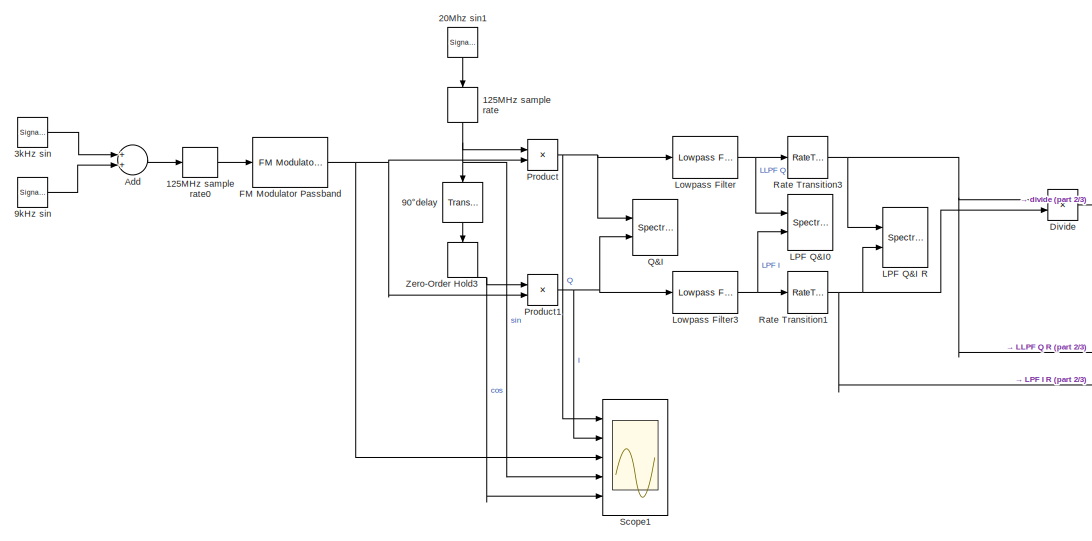
[diagram: root canvas - part 1/3, top left region]
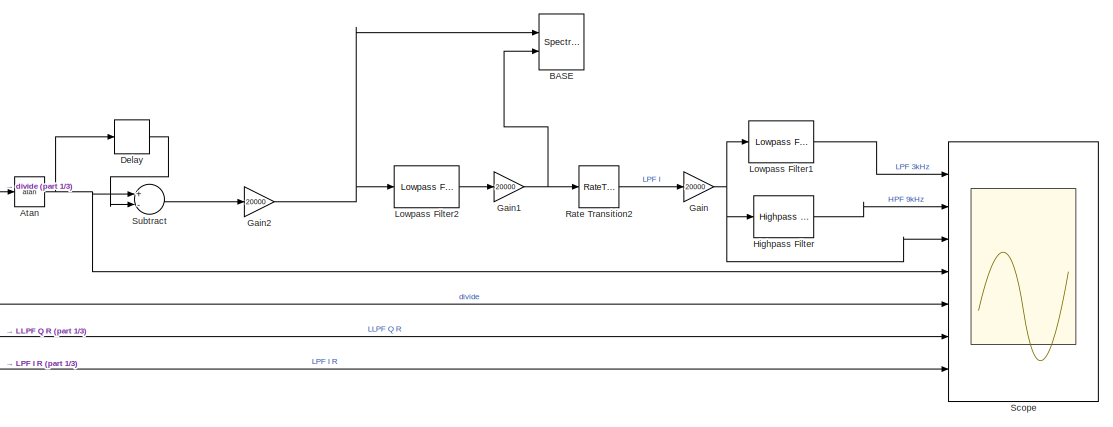
[diagram: root canvas - part 2/3, top right region]
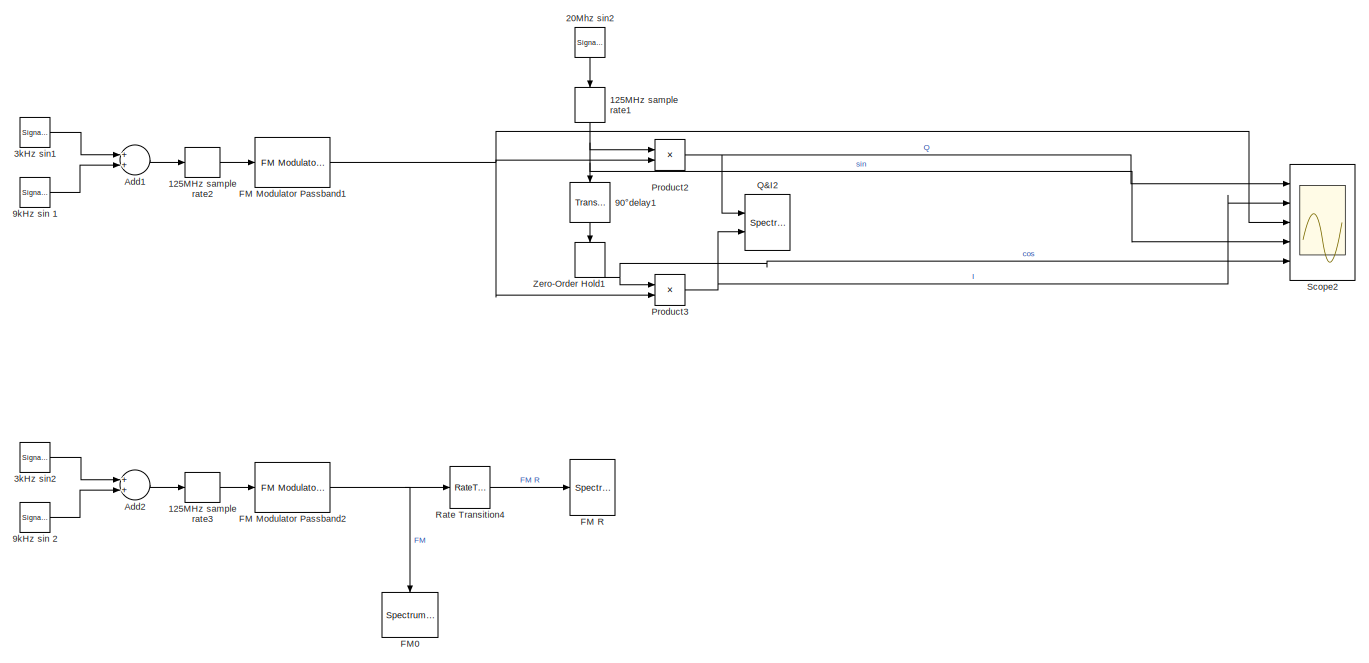
[diagram: root canvas - part 3/3, bottom left region]
MODEL slx_e75ce9194355
KIND model
CONFIG AbsTol = auto
CONFIG EnableMultiTasking = off
CONFIG FixedStep = 8e-9
CONFIG MaxStep = auto
CONFIG MinStep = auto
CONFIG RelTol = 1e-3
CONFIG SampleTimeConstraint = Unconstrained
CONFIG Solver = VariableStepAuto
CONFIG SolverName = VariableStepAuto
CONFIG StartTime = 0.0
CONFIG StopTime = 0.05
BLOCK [ZeroOrderHold] 125MHz sample rate
  SampleTime = 8e-9
BLOCK [ZeroOrderHold] 125MHz sample rate0
  SampleTime = 8e-9
BLOCK [ZeroOrderHold] 125MHz sample rate1
  SampleTime = 8E-9
BLOCK [ZeroOrderHold] 125MHz sample rate2
  SampleTime = 8e-9
BLOCK [ZeroOrderHold] 125MHz sample rate3
  SampleTime = 8e-9
BLOCK [SignalGenerator] 20Mhz sin1
  Frequency = 20e6
  Ports = [0, 1]
BLOCK [SignalGenerator] 20Mhz sin2
  Frequency = 20e6
  Ports = [0, 1]
BLOCK [SignalGenerator] 3kHz sin
  Frequency = 3000
  Ports = [0, 1]
BLOCK [SignalGenerator] 3kHz sin1
  Frequency = 3000
  Ports = [0, 1]
BLOCK [SignalGenerator] 3kHz sin2
  Frequency = 3000
  Ports = [0, 1]
BLOCK [TransportDelay] 90°delay
  DelayTime = 12.5e-9
  Ports = [1, 1]
BLOCK [TransportDelay] 90°delay1
  DelayTime = 12.5e-9
  Ports = [1, 1]
BLOCK [SignalGenerator] 9kHz sin 
  Frequency = 9000
  Ports = [0, 1]
BLOCK [SignalGenerator] 9kHz sin 1
  Frequency = 9000
  Ports = [0, 1]
BLOCK [SignalGenerator] 9kHz sin 2
  Frequency = 9000
  Ports = [0, 1]
BLOCK [Sum] Add
  InputSameDT = off
  OutDataTypeStr = Inherit: Inherit via internal rule
  Ports = [2, 1]
  SaturateOnIntegerOverflow = off
BLOCK [Sum] Add1
  InputSameDT = off
  OutDataTypeStr = Inherit: Inherit via internal rule
  Ports = [2, 1]
  SaturateOnIntegerOverflow = off
BLOCK [Sum] Add2
  InputSameDT = off
  OutDataTypeStr = Inherit: Inherit via internal rule
  Ports = [2, 1]
  SaturateOnIntegerOverflow = off
BLOCK [Trigonometry] Atan
  Operator = atan
  Ports = [1, 1]
BLOCK [SpectrumAnalyzer] BASE
  NumInputPorts = 2
  Ports = [2]
  ScopeSpecificationString = spbscopes.SpectrumAnalyzerBlockCfg('CurrentConfiguration', extmgr.ConfigurationSet(extmgr.Configuration('Core','General UI',true),extmgr.Configuration('Core','Source UI',true),extmgr.Configuration('Sources','WiredSimulink',true),extmgr.Configuration('Sources','SimulinkEvent',false),extmgr.Configuration('Sources','Simulink',false),extmgr.Configuration('Sources','SPTool',false),extmgr.Configuration(...<+3936ch>
BLOCK [Delay] Delay
  DelayLength = 40
  InitialCondition = 0
  InputPortMap = u0
  Ports = [1, 1]
BLOCK [Product] Divide
  InputSameDT = off
  Inputs = */
  OutDataTypeStr = Inherit: Inherit via internal rule
  Ports = [2, 1]
  RndMeth = Floor
  SaturateOnIntegerOverflow = off
BLOCK [Reference] FM Modulator Passband  REF=commanapbnd3/FM
Modulator
Passband
  Ports = [1, 1]
  SourceBlock = commanapbnd3/FM\nModulator\nPassband
  SourceProductBaseCode = CM
  SourceProductName = Communications Toolbox
  SourceType = FM Modulator Passband
BLOCK [Reference] FM Modulator Passband1  REF=commanapbnd3/FM
Modulator
Passband
  Ports = [1, 1]
  SourceBlock = commanapbnd3/FM\nModulator\nPassband
  SourceProductBaseCode = CM
  SourceProductName = Communications Toolbox
  SourceType = FM Modulator Passband
BLOCK [Reference] FM Modulator Passband2  REF=commanapbnd3/FM
Modulator
Passband
  Ports = [1, 1]
  SourceBlock = commanapbnd3/FM\nModulator\nPassband
  SourceProductBaseCode = CM
  SourceProductName = Communications Toolbox
  SourceType = FM Modulator Passband
BLOCK [SpectrumAnalyzer] FM R
  Ports = [1]
  ScopeSpecificationString = spbscopes.SpectrumAnalyzerBlockCfg('CurrentConfiguration', extmgr.ConfigurationSet(extmgr.Configuration('Core','General UI',true),extmgr.Configuration('Core','Source UI',true),extmgr.Configuration('Sources','WiredSimulink',true),extmgr.Configuration('Sources','SimulinkEvent',false),extmgr.Configuration('Sources','Simulink',false),extmgr.Configuration('Sources','SPTool',false),extmgr.Configuration(...<+3840ch>
BLOCK [SpectrumAnalyzer] FM0
  Ports = [1]
  ScopeSpecificationString = spbscopes.SpectrumAnalyzerBlockCfg('CurrentConfiguration', extmgr.ConfigurationSet(extmgr.Configuration('Core','General UI',true),extmgr.Configuration('Core','Source UI',true),extmgr.Configuration('Sources','WiredSimulink',true),extmgr.Configuration('Sources','SimulinkEvent',false),extmgr.Configuration('Sources','Simulink',false),extmgr.Configuration('Sources','SPTool',false),extmgr.Configuration(...<+3766ch>
BLOCK [Gain] Gain
  Gain = 20000
  OutDataTypeStr = Inherit: Inherit via internal rule
  ParamDataTypeStr = Inherit: Inherit via internal rule
  SaturateOnIntegerOverflow = off
BLOCK [Gain] Gain1
  Gain = 20000
  OutDataTypeStr = Inherit: Inherit via internal rule
  ParamDataTypeStr = Inherit: Inherit via internal rule
  SaturateOnIntegerOverflow = off
BLOCK [Gain] Gain2
  Gain = 20000
  OutDataTypeStr = Inherit: Inherit via internal rule
  ParamDataTypeStr = Inherit: Inherit via internal rule
  SaturateOnIntegerOverflow = off
BLOCK [Reference] Highpass Filter  REF=dspfdesign/Highpass Filter
  Ports = [1, 1]
  SourceBlock = dspfdesign/Highpass Filter
  SourceProductBaseCode = DS
  SourceProductName = DSP System Toolbox
  SourceType = dsp.HighpassFilter
BLOCK [SpectrumAnalyzer] LPF Q&I R
  NumInputPorts = 2
  Ports = [2]
  ScopeSpecificationString = spbscopes.SpectrumAnalyzerBlockCfg('CurrentConfiguration', extmgr.ConfigurationSet(extmgr.Configuration('Core','General UI',true),extmgr.Configuration('Core','Source UI',true),extmgr.Configuration('Sources','WiredSimulink',true),extmgr.Configuration('Sources','SimulinkEvent',false),extmgr.Configuration('Sources','Simulink',false),extmgr.Configuration('Sources','SPTool',false),extmgr.Configuration(...<+3973ch>
BLOCK [SpectrumAnalyzer] LPF Q&I0
  NumInputPorts = 2
  Ports = [2]
  ScopeSpecificationString = spbscopes.SpectrumAnalyzerBlockCfg('CurrentConfiguration', extmgr.ConfigurationSet(extmgr.Configuration('Core','General UI',true),extmgr.Configuration('Core','Source UI',true),extmgr.Configuration('Sources','WiredSimulink',true),extmgr.Configuration('Sources','SimulinkEvent',false),extmgr.Configuration('Sources','Simulink',false),extmgr.Configuration('Sources','SPTool',false),extmgr.Configuration(...<+3888ch>
BLOCK [Reference] Lowpass Filter  REF=dspfdesign/Lowpass Filter
  Ports = [1, 1]
  SourceBlock = dspfdesign/Lowpass Filter
  SourceProductBaseCode = DS
  SourceProductName = DSP System Toolbox
  SourceType = dsp.LowpassFilter
BLOCK [Reference] Lowpass Filter1  REF=dspfdesign/Lowpass Filter
  Ports = [1, 1]
  SourceBlock = dspfdesign/Lowpass Filter
  SourceProductBaseCode = DS
  SourceProductName = DSP System Toolbox
  SourceType = dsp.LowpassFilter
BLOCK [Reference] Lowpass Filter2  REF=dspfdesign/Lowpass Filter
  Ports = [1, 1]
  SourceBlock = dspfdesign/Lowpass Filter
  SourceProductBaseCode = DS
  SourceProductName = DSP System Toolbox
  SourceType = dsp.LowpassFilter
BLOCK [Reference] Lowpass Filter3  REF=dspfdesign/Lowpass Filter
  Ports = [1, 1]
  SourceBlock = dspfdesign/Lowpass Filter
  SourceProductBaseCode = DS
  SourceProductName = DSP System Toolbox
  SourceType = dsp.LowpassFilter
BLOCK [Product] Product
  InputSameDT = off
  OutDataTypeStr = Inherit: Inherit via internal rule
  Ports = [2, 1]
  RndMeth = Floor
  SaturateOnIntegerOverflow = off
BLOCK [Product] Product1
  InputSameDT = off
  OutDataTypeStr = Inherit: Inherit via internal rule
  Ports = [2, 1]
  RndMeth = Floor
  SaturateOnIntegerOverflow = off
BLOCK [Product] Product2
  InputSameDT = off
  OutDataTypeStr = Inherit: Inherit via internal rule
  Ports = [2, 1]
  RndMeth = Floor
  SaturateOnIntegerOverflow = off
BLOCK [Product] Product3
  InputSameDT = off
  OutDataTypeStr = Inherit: Inherit via internal rule
  Ports = [2, 1]
  RndMeth = Floor
  SaturateOnIntegerOverflow = off
BLOCK [SpectrumAnalyzer] Q&I
  NumInputPorts = 2
  Ports = [2]
  ScopeSpecificationString = spbscopes.SpectrumAnalyzerBlockCfg('CurrentConfiguration', extmgr.ConfigurationSet(extmgr.Configuration('Core','General UI',true),extmgr.Configuration('Core','Source UI',true),extmgr.Configuration('Sources','WiredSimulink',true),extmgr.Configuration('Sources','SimulinkEvent',false),extmgr.Configuration('Sources','Simulink',false),extmgr.Configuration('Sources','SPTool',false),extmgr.Configuration(...<+3863ch>
BLOCK [SpectrumAnalyzer] Q&I2
  NumInputPorts = 2
  Ports = [2]
  ScopeSpecificationString = spbscopes.SpectrumAnalyzerBlockCfg('CurrentConfiguration', extmgr.ConfigurationSet(extmgr.Configuration('Core','General UI',true),extmgr.Configuration('Core','Source UI',true),extmgr.Configuration('Sources','WiredSimulink',true),extmgr.Configuration('Sources','SimulinkEvent',false),extmgr.Configuration('Sources','Simulink',false),extmgr.Configuration('Sources','SPTool',false),extmgr.Configuration(...<+3860ch>
BLOCK [RateTransition] Rate Transition1
  OutPortSampleTimeMultiple = 25
  OutPortSampleTimeOpt = Multiple of input port sample time
BLOCK [RateTransition] Rate Transition2
  OutPortSampleTimeMultiple = 50
  OutPortSampleTimeOpt = Multiple of input port sample time
BLOCK [RateTransition] Rate Transition3
  OutPortSampleTimeMultiple = 25
  OutPortSampleTimeOpt = Multiple of input port sample time
BLOCK [RateTransition] Rate Transition4
  OutPortSampleTimeMultiple = 2
  OutPortSampleTimeOpt = Multiple of input port sample time
BLOCK [Scope] Scope
  Floating = off
  NumInputPorts = 7
  Ports = [7]
  ScopeSpecificationString = Simulink.scopes.TimeScopeBlockCfg('CurrentConfiguration', extmgr.ConfigurationSet(extmgr.Configuration('Core','General UI',true),extmgr.Configuration('Core','Source UI',true),extmgr.Configuration('Sources','WiredSimulink',true),extmgr.Configuration('Visuals','Time Domain',true,'SerializedDisplays',{struct('MinYLimReal','-144708938708.90027','MaxYLimReal','139908613730.36938','YLabelReal','','MinYL...<+5152ch>
BLOCK [Scope] Scope1
  Floating = off
  NumInputPorts = 5
  Ports = [5]
  ScopeSpecificationString = Simulink.scopes.TimeScopeBlockCfg('CurrentConfiguration', extmgr.ConfigurationSet(extmgr.Configuration('Core','General UI',true),extmgr.Configuration('Core','Source UI',true),extmgr.Configuration('Sources','WiredSimulink',true,'DataLoggingVariableName','ScopeData1'),extmgr.Configuration('Visuals','Time Domain',true,'SerializedDisplays',{struct('MinYLimReal','-1.24752','MaxYLimReal','1.24753','YLab...<+3484ch>
BLOCK [Scope] Scope2
  Floating = off
  NumInputPorts = 5
  Ports = [5]
  ScopeSpecificationString = Simulink.scopes.TimeScopeBlockCfg('CurrentConfiguration', extmgr.ConfigurationSet(extmgr.Configuration('Core','General UI',true),extmgr.Configuration('Core','Source UI',true),extmgr.Configuration('Sources','WiredSimulink',true,'DataLoggingVariableName','ScopeData2'),extmgr.Configuration('Visuals','Time Domain',true,'SerializedDisplays',{struct('MinYLimReal','-1.24752','MaxYLimReal','1.24753','YLab...<+3530ch>
BLOCK [Sum] Subtract
  InputSameDT = off
  Inputs = +-
  OutDataTypeStr = Inherit: Inherit via internal rule
  Ports = [2, 1]
  SaturateOnIntegerOverflow = off
BLOCK [ZeroOrderHold] Zero-Order Hold1
  SampleTime = 8E-9
BLOCK [ZeroOrderHold] Zero-Order Hold3
  SampleTime = 8e-9
LINE 125MHz sample rate0:1 -> FM Modulator Passband:1
NET 125MHz sample rate1:1 -> 90°delay1:1, Product2:1, Scope2:4
LINE 125MHz sample rate2:1 -> FM Modulator Passband1:1
LINE 125MHz sample rate3:1 -> FM Modulator Passband2:1
NET 125MHz sample rate:1 -> 90°delay:1, Product:1, Scope1:4
LINE 20Mhz sin1:1 -> 125MHz sample rate:1
LINE 20Mhz sin2:1 -> 125MHz sample rate1:1
LINE 3kHz sin1:1 -> Add1:1
LINE 3kHz sin2:1 -> Add2:1
LINE 3kHz sin:1 -> Add:1
LINE 90°delay1:1 -> Zero-Order Hold1:1
LINE 90°delay:1 -> Zero-Order Hold3:1
LINE 9kHz sin 1:1 -> Add1:2
LINE 9kHz sin 2:1 -> Add2:2
LINE 9kHz sin :1 -> Add:2
LINE Add1:1 -> 125MHz sample rate2:1
LINE Add2:1 -> 125MHz sample rate3:1
LINE Add:1 -> 125MHz sample rate0:1
NET Atan:1 -> Delay:1, Scope:4, Subtract:1
LINE Delay:1 -> Subtract:2
NET Divide:1 -> Atan:1, Scope:5
NET FM Modulator Passband1:1 -> Product2:2, Product3:2, Scope2:3
NET FM Modulator Passband2:1 -> FM0:1, Rate Transition4:1
NET FM Modulator Passband:1 -> Product1:2, Product:2, Scope1:3
NET Gain1:1 -> BASE:2, Rate Transition2:1
NET Gain2:1 -> BASE:1, Lowpass Filter2:1
NET Gain:1 -> Highpass Filter:1, Lowpass Filter1:1, Scope:3
LINE Highpass Filter:1 -> Scope:2
LINE Lowpass Filter1:1 -> Scope:1
LINE Lowpass Filter2:1 -> Gain1:1
NET Lowpass Filter3:1 -> LPF Q&I0:2, Rate Transition1:1
NET Lowpass Filter:1 -> LPF Q&I0:1, Rate Transition3:1
NET Product1:1 -> Lowpass Filter3:1, Q&I:2, Scope1:2
NET Product2:1 -> Q&I2:1, Scope2:1
NET Product3:1 -> Q&I2:2, Scope2:2
NET Product:1 -> Lowpass Filter:1, Q&I:1, Scope1:1
NET Rate Transition1:1 -> Divide:2, LPF Q&I R:2, Scope:7
LINE Rate Transition2:1 -> Gain:1
NET Rate Transition3:1 -> Divide:1, LPF Q&I R:1, Scope:6
LINE Rate Transition4:1 -> FM R:1
LINE Subtract:1 -> Gain2:1
NET Zero-Order Hold1:1 -> Product3:1, Scope2:5
NET Zero-Order Hold3:1 -> Product1:1, Scope1:5
note: NET lines group one-source signal fan-out (src -> all destinations, sorted); 1:1 wires keep LINE
